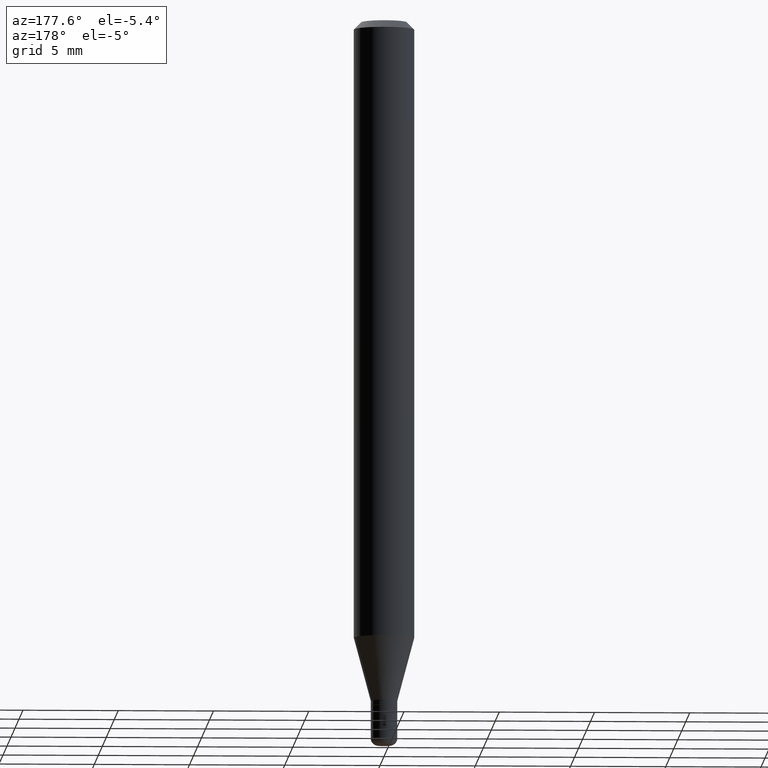
[diagram: clean part render]
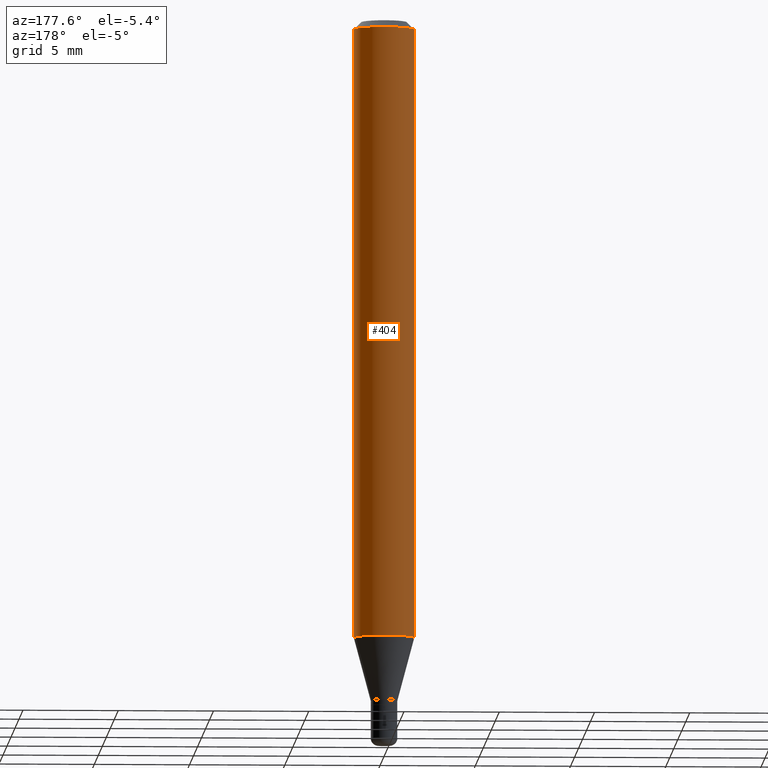
[diagram: same view with one face highlighted and labeled with its STEP entity id]
A machine part, auxiliary view. The second image highlights one B-rep face of the part: STEP entity #404.
In plain terms, the highlighted cylindrical surface (edge-blend (fillet) strip) has radius 1.5875 mm, axis along (-0, 0, 1).
Its self-contained STEP definition (entity closure, byte-faithful):
#43 = DIRECTION ( 'NONE',  ( 1.000000000000000000, -6.982962677686266711E-15, 0.000000000000000000 ) ) ;
#52 = CARTESIAN_POINT ( 'NONE',  ( -0.06250000000000000000, -1.810322271438192615E-15, -0.01499999999999970281 ) ) ;
#62 = VERTEX_POINT ( 'NONE', #272 ) ;
#63 = DIRECTION ( 'NONE',  ( 1.000000000000000000, -6.982962677686262766E-15, 0.000000000000000000 ) ) ;
#77 = CARTESIAN_POINT ( 'NONE',  ( -0.06250000000000000000, 4.440892098500626162E-16, -3.074334431409316114E-30 ) ) ;
#101 = EDGE_CURVE ( 'NONE', #62, #302, #164, .T. ) ;
#105 = ORIENTED_EDGE ( 'NONE', *, *, #101, .T. ) ;
#134 = LINE ( 'NONE', #176, #384 ) ;
#140 = VECTOR ( 'NONE', #241, 39.37007874015748143 ) ;
#158 = EDGE_CURVE ( 'NONE', #426, #302, #470, .T. ) ;
#164 = LINE ( 'NONE', #77, #140 ) ;
#176 = CARTESIAN_POINT ( 'NONE',  ( 0.06250000000000000000, -4.364351673553916694E-16, 3.047610484872459871E-30 ) ) ;
#178 = AXIS2_PLACEMENT_3D ( 'NONE', #211, #369, #63 ) ;
#186 = ORIENTED_EDGE ( 'NONE', *, *, #158, .F. ) ;
#199 = DIRECTION ( 'NONE',  ( -2.445468806185136597E-29, 3.491481338843145583E-15, 1.000000000000000000 ) ) ;
#211 = CARTESIAN_POINT ( 'NONE',  ( 3.121343126147216904E-29, -4.456450742493864567E-15, -1.276378221735089635 ) ) ;
#229 = CIRCLE ( 'NONE', #178, 0.06250000000000000000 ) ;
#241 = DIRECTION ( 'NONE',  ( -2.445468806185136877E-29, 3.491481338843145188E-15, 1.000000000000000000 ) ) ;
#255 = FACE_OUTER_BOUND ( 'NONE', #378, .T. ) ;
#263 = ORIENTED_EDGE ( 'NONE', *, *, #287, .T. ) ;
#272 = CARTESIAN_POINT ( 'NONE',  ( -0.06250000000000000000, -4.012361532643800373E-15, -1.276378221735089635 ) ) ;
#287 = EDGE_CURVE ( 'NONE', #460, #62, #229, .T. ) ;
#293 = ORIENTED_EDGE ( 'NONE', *, *, #370, .F. ) ;
#302 = VERTEX_POINT ( 'NONE', #52 ) ;
#319 = AXIS2_PLACEMENT_3D ( 'NONE', #422, #500, #381 ) ;
#322 = DIRECTION ( 'NONE',  ( -2.445468806185136877E-29, 3.491481338843145188E-15, 1.000000000000000000 ) ) ;
#334 = CYLINDRICAL_SURFACE ( 'NONE', #319, 0.06250000000000000000 ) ;
#353 = CARTESIAN_POINT ( 'NONE',  ( 0.06250000000000000000, -4.892885909849255447E-15, -1.276378221735089635 ) ) ;
#369 = DIRECTION ( 'NONE',  ( -2.445468806185136597E-29, 3.491481338843145583E-15, 1.000000000000000000 ) ) ;
#370 = EDGE_CURVE ( 'NONE', #460, #426, #134, .T. ) ;
#378 = EDGE_LOOP ( 'NONE', ( #263, #105, #186, #293 ) ) ;
#381 = DIRECTION ( 'NONE',  ( 1.000000000000000000, -6.982962677686266711E-15, 4.876176775795935793E-29 ) ) ;
#384 = VECTOR ( 'NONE', #322, 39.37007874015748143 ) ;
#394 = CARTESIAN_POINT ( 'NONE',  ( 3.668203209277632395E-31, -5.237222008264614861E-17, -0.01499999999999970281 ) ) ;
#404 = ADVANCED_FACE ( 'NONE', ( #255 ), #334, .T. ) ;
#422 = CARTESIAN_POINT ( 'NONE',  ( 0.000000000000000000, 0.000000000000000000, 0.000000000000000000 ) ) ;
#426 = VERTEX_POINT ( 'NONE', #478 ) ;
#449 = AXIS2_PLACEMENT_3D ( 'NONE', #394, #199, #43 ) ;
#460 = VERTEX_POINT ( 'NONE', #353 ) ;
#470 = CIRCLE ( 'NONE', #449, 0.06250000000000000000 ) ;
#478 = CARTESIAN_POINT ( 'NONE',  ( 0.06250000000000000000, -4.888073874380378612E-16, -0.01499999999999970281 ) ) ;
#500 = DIRECTION ( 'NONE',  ( -2.445468806185136597E-29, 3.491481338843145583E-15, 1.000000000000000000 ) ) ;